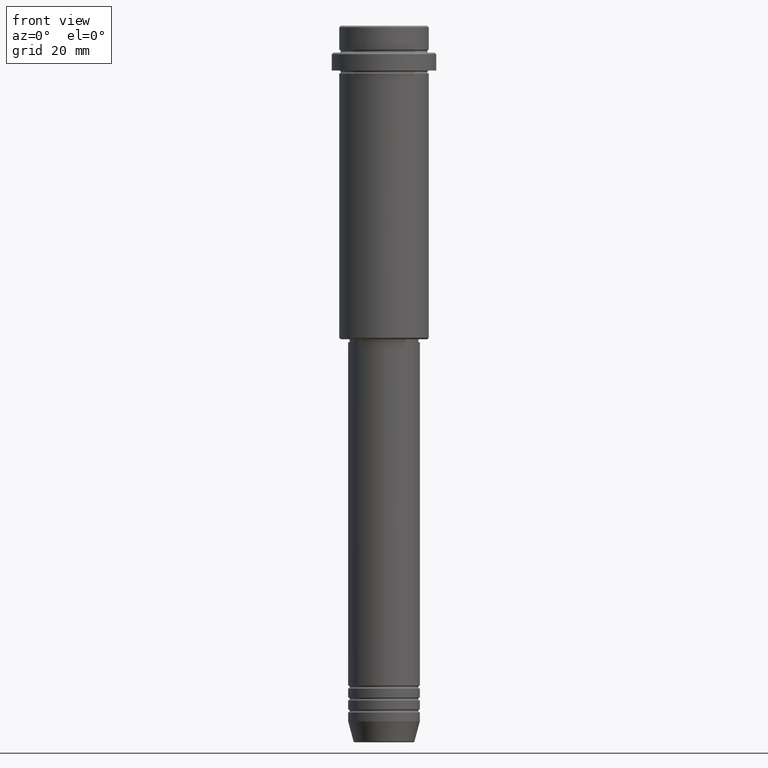
[diagram: clean part render]
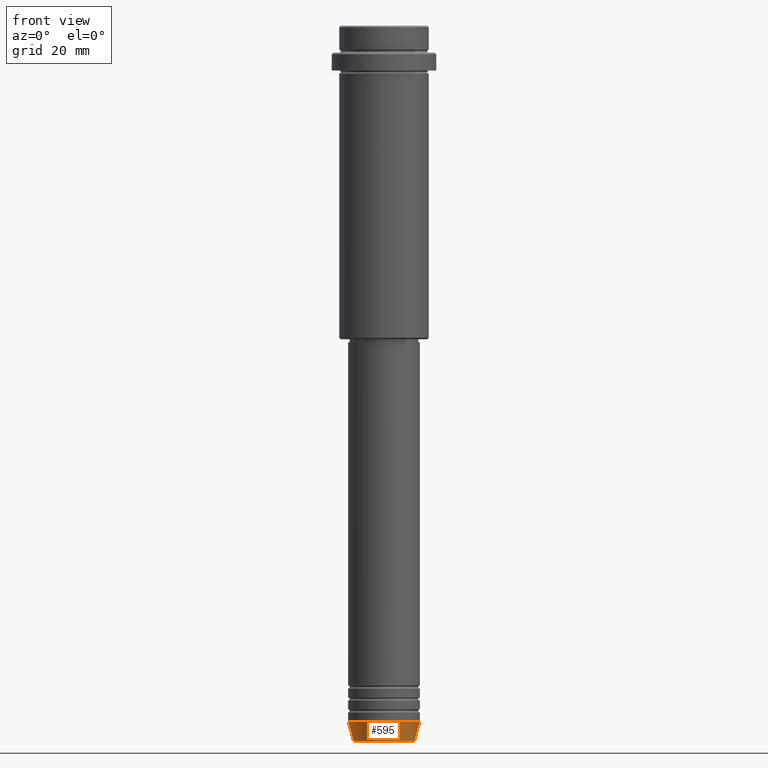
[diagram: same view with one face highlighted and labeled with its STEP entity id]
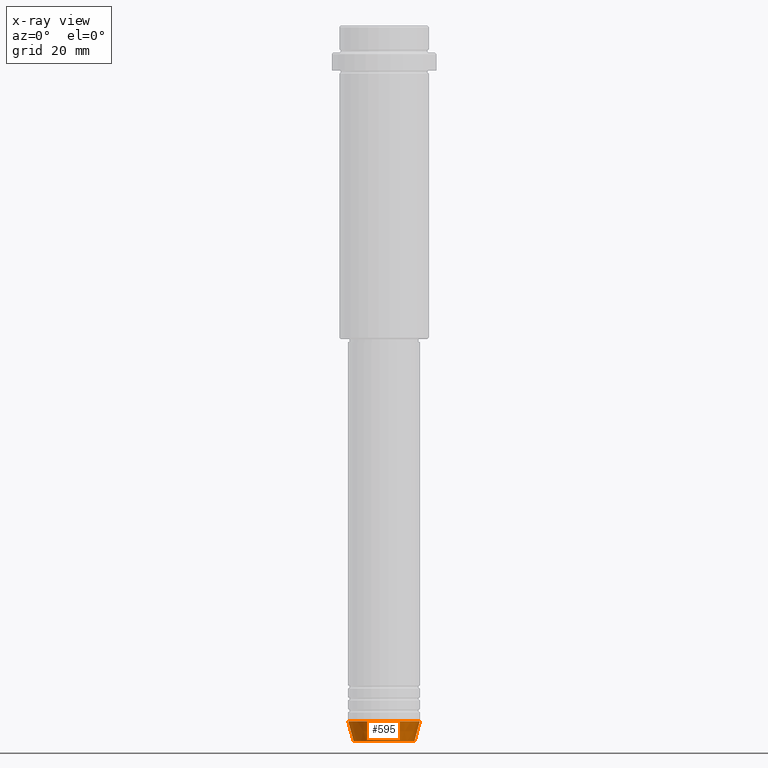
[diagram: x-ray of the same camera — body ghosted, the highlighted face saturated]
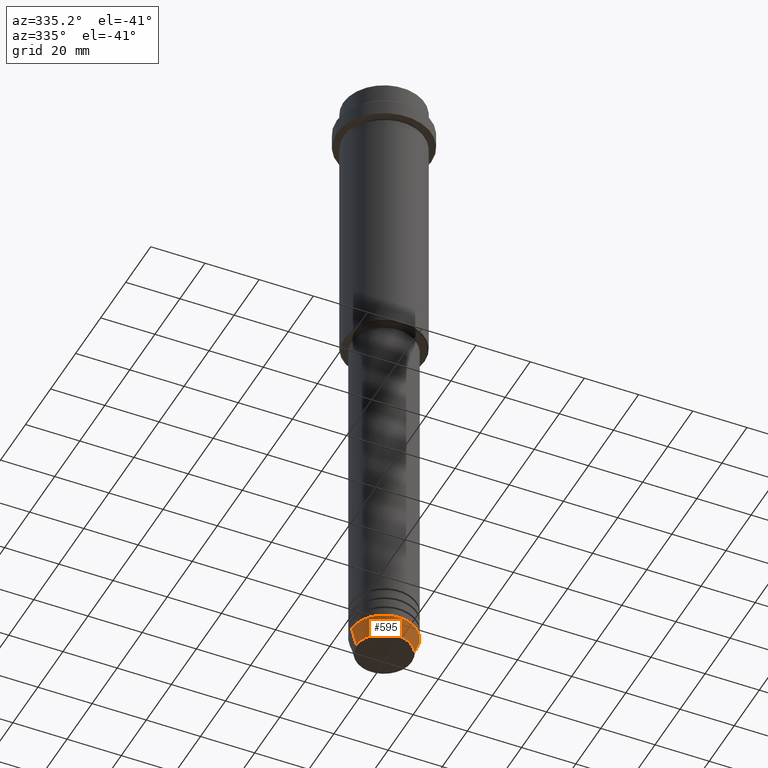
[diagram: same view with one face highlighted and labeled with its STEP entity id]
A machine part, front view. The second image highlights one B-rep face of the part: STEP entity #595.
The next image is the same camera in x-ray: the body ghosted, the highlighted face saturated — about 0% of this face is hidden behind the body in this view.
A second angle (auxiliary view) of the same face is appended — the face is thin or edge-on in the first view.
In plain terms, the highlighted conical surface has half-angle 15 deg.
Its self-contained STEP definition (entity closure, byte-faithful):
#28 = DIRECTION ( 'NONE',  ( -0.000000000000000000, -0.000000000000000000, 1.000000000000000000 ) ) ;
#46 = DIRECTION ( 'NONE',  ( -0.000000000000000000, -0.000000000000000000, 1.000000000000000000 ) ) ;
#51 = LINE ( 'NONE', #805, #554 ) ;
#89 = CARTESIAN_POINT ( 'NONE',  ( 12.00000000000000000, 0.000000000000000000, -233.0000000000000284 ) ) ;
#102 = CIRCLE ( 'NONE', #1406, 12.00000000000000000 ) ;
#123 = CARTESIAN_POINT ( 'NONE',  ( 0.000000000000000000, 0.000000000000000000, -239.6294095225512990 ) ) ;
#189 = CONICAL_SURFACE ( 'NONE', #981, 12.00000000000000000, 0.2617993877991491303 ) ;
#265 = DIRECTION ( 'NONE',  ( -0.2588190451025205174, 3.169619151431761243E-17, 0.9659258262890684232 ) ) ;
#429 = ORIENTED_EDGE ( 'NONE', *, *, #1093, .F. ) ;
#450 = LINE ( 'NONE', #1300, #1362 ) ;
#465 = CARTESIAN_POINT ( 'NONE',  ( 10.22365507213720015, 0.000000000000000000, -239.6294095225512990 ) ) ;
#554 = VECTOR ( 'NONE', #265, 1000.000000000000114 ) ;
#595 = ADVANCED_FACE ( 'NONE', ( #1191 ), #189, .T. ) ;
#670 = VERTEX_POINT ( 'NONE', #465 ) ;
#677 = DIRECTION ( 'NONE',  ( -0.000000000000000000, -0.000000000000000000, 1.000000000000000000 ) ) ;
#704 = DIRECTION ( 'NONE',  ( 1.000000000000000000, 0.000000000000000000, 0.000000000000000000 ) ) ;
#739 = VERTEX_POINT ( 'NONE', #1039 ) ;
#796 = DIRECTION ( 'NONE',  ( 1.000000000000000000, 0.000000000000000000, 0.000000000000000000 ) ) ;
#805 = CARTESIAN_POINT ( 'NONE',  ( -12.00000000000000000, 1.469576158976823947E-15, -233.0000000000000284 ) ) ;
#854 = VERTEX_POINT ( 'NONE', #89 ) ;
#864 = CARTESIAN_POINT ( 'NONE',  ( 0.000000000000000000, 0.000000000000000000, -233.0000000000000284 ) ) ;
#901 = EDGE_LOOP ( 'NONE', ( #1054, #1385, #1187, #429 ) ) ;
#918 = CARTESIAN_POINT ( 'NONE',  ( -10.22365507213720015, 1.360806402472383139E-15, -239.6294095225512990 ) ) ;
#981 = AXIS2_PLACEMENT_3D ( 'NONE', #864, #677, #1133 ) ;
#985 = CIRCLE ( 'NONE', #1036, 10.22365507213720015 ) ;
#1020 = EDGE_CURVE ( 'NONE', #1083, #670, #985, .T. ) ;
#1036 = AXIS2_PLACEMENT_3D ( 'NONE', #123, #28, #796 ) ;
#1039 = CARTESIAN_POINT ( 'NONE',  ( -12.00000000000000000, 1.469576158976823947E-15, -233.0000000000000284 ) ) ;
#1054 = ORIENTED_EDGE ( 'NONE', *, *, #1068, .F. ) ;
#1068 = EDGE_CURVE ( 'NONE', #1083, #739, #51, .T. ) ;
#1083 = VERTEX_POINT ( 'NONE', #918 ) ;
#1093 = EDGE_CURVE ( 'NONE', #739, #854, #102, .T. ) ;
#1133 = DIRECTION ( 'NONE',  ( 1.000000000000000000, 0.000000000000000000, 0.000000000000000000 ) ) ;
#1187 = ORIENTED_EDGE ( 'NONE', *, *, #1365, .T. ) ;
#1191 = FACE_OUTER_BOUND ( 'NONE', #901, .T. ) ;
#1239 = CARTESIAN_POINT ( 'NONE',  ( 0.000000000000000000, 0.000000000000000000, -233.0000000000000284 ) ) ;
#1300 = CARTESIAN_POINT ( 'NONE',  ( 12.00000000000000000, 0.000000000000000000, -233.0000000000000284 ) ) ;
#1344 = DIRECTION ( 'NONE',  ( 0.2588190451025205174, 0.000000000000000000, 0.9659258262890684232 ) ) ;
#1362 = VECTOR ( 'NONE', #1344, 1000.000000000000114 ) ;
#1365 = EDGE_CURVE ( 'NONE', #670, #854, #450, .T. ) ;
#1385 = ORIENTED_EDGE ( 'NONE', *, *, #1020, .T. ) ;
#1406 = AXIS2_PLACEMENT_3D ( 'NONE', #1239, #46, #704 ) ;